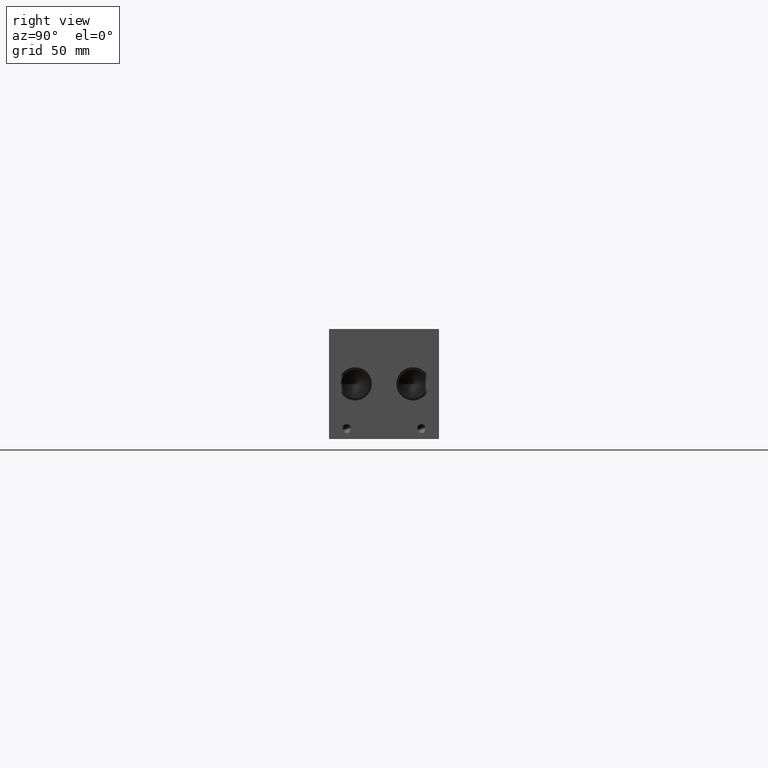
[diagram: clean part render]
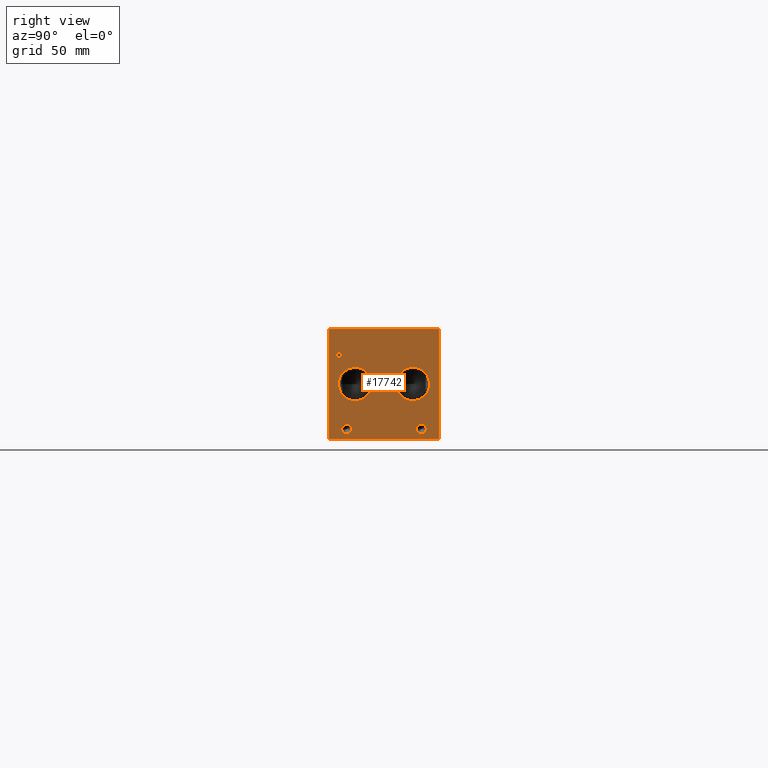
[diagram: same view with one face highlighted and labeled with its STEP entity id]
A machine part, right view. The second image highlights one B-rep face of the part: STEP entity #17742.
In plain terms, the highlighted planar face has unit normal (1, 0, 0).
Its self-contained STEP definition (entity closure, byte-faithful):
#477=CIRCLE('',#18527,13.462);
#478=CIRCLE('',#18528,13.462);
#479=CIRCLE('',#18529,13.462);
#480=CIRCLE('',#18530,13.462);
#481=CIRCLE('',#18531,3.9624);
#482=CIRCLE('',#18532,3.9624);
#483=CIRCLE('',#18533,3.9624);
#484=CIRCLE('',#18534,3.9624);
#1310=B_SPLINE_CURVE_WITH_KNOTS('',2,(#29284,#29285,#29286,#29287),
 .UNSPECIFIED.,.F.,.F.,(3,1,3),(0.,1.,2.),.UNSPECIFIED.);
#1312=B_SPLINE_CURVE_WITH_KNOTS('',2,(#29305,#29306,#29307,#29308),
 .UNSPECIFIED.,.F.,.F.,(3,1,3),(0.,1.,2.),.UNSPECIFIED.);
#1314=B_SPLINE_CURVE_WITH_KNOTS('',2,(#29354,#29355,#29356,#29357),
 .UNSPECIFIED.,.F.,.F.,(3,1,3),(0.,1.,2.),.UNSPECIFIED.);
#1316=B_SPLINE_CURVE_WITH_KNOTS('',2,(#29372,#29373,#29374,#29375),
 .UNSPECIFIED.,.F.,.F.,(3,1,3),(0.,1.,2.),.UNSPECIFIED.);
#1424=FACE_BOUND('',#3177,.T.);
#1425=FACE_BOUND('',#3178,.T.);
#1426=FACE_BOUND('',#3179,.T.);
#1427=FACE_BOUND('',#3180,.T.);
#1428=FACE_BOUND('',#3181,.T.);
#1429=FACE_BOUND('',#3182,.T.);
#2158=FACE_OUTER_BOUND('',#3176,.T.);
#3176=EDGE_LOOP('',(#14378,#14379,#14380,#14381));
#3177=EDGE_LOOP('',(#14382,#14383));
#3178=EDGE_LOOP('',(#14384,#14385));
#3179=EDGE_LOOP('',(#14386,#14387));
#3180=EDGE_LOOP('',(#14388,#14389));
#3181=EDGE_LOOP('',(#14390,#14391,#14392,#14393,#14394,#14395,#14396,#14397));
#3182=EDGE_LOOP('',(#14398,#14399,#14400,#14401,#14402,#14403,#14404,#14405,
#14406));
#3642=LINE('',#23291,#5225);
#4872=LINE('',#29317,#6455);
#4875=LINE('',#29323,#6458);
#4878=LINE('',#29329,#6461);
#4881=LINE('',#29335,#6464);
#4884=LINE('',#29341,#6467);
#4888=LINE('',#29383,#6471);
#4889=LINE('',#29385,#6472);
#4890=LINE('',#29386,#6473);
#4891=LINE('',#29405,#6474);
#4892=LINE('',#29407,#6475);
#4893=LINE('',#29409,#6476);
#4894=LINE('',#29411,#6477);
#4895=LINE('',#29413,#6478);
#4896=LINE('',#29415,#6479);
#4897=LINE('',#29417,#6480);
#4898=LINE('',#29418,#6481);
#5225=VECTOR('',#19321,10.);
#6455=VECTOR('',#21423,10.);
#6458=VECTOR('',#21428,10.);
#6461=VECTOR('',#21433,10.);
#6464=VECTOR('',#21438,10.);
#6467=VECTOR('',#21443,10.);
#6471=VECTOR('',#21451,10.);
#6472=VECTOR('',#21452,10.);
#6473=VECTOR('',#21453,10.);
#6474=VECTOR('',#21470,10.);
#6475=VECTOR('',#21471,10.);
#6476=VECTOR('',#21472,10.);
#6477=VECTOR('',#21473,10.);
#6478=VECTOR('',#21474,10.);
#6479=VECTOR('',#21475,10.);
#6480=VECTOR('',#21476,10.);
#6481=VECTOR('',#21477,10.);
#6797=VERTEX_POINT('',#23288);
#6798=VERTEX_POINT('',#23290);
#7928=VERTEX_POINT('',#29282);
#7929=VERTEX_POINT('',#29283);
#7932=VERTEX_POINT('',#29304);
#7934=VERTEX_POINT('',#29316);
#7936=VERTEX_POINT('',#29322);
#7938=VERTEX_POINT('',#29328);
#7940=VERTEX_POINT('',#29334);
#7942=VERTEX_POINT('',#29340);
#7944=VERTEX_POINT('',#29353);
#7946=VERTEX_POINT('',#29382);
#7947=VERTEX_POINT('',#29384);
#7948=VERTEX_POINT('',#29387);
#7949=VERTEX_POINT('',#29388);
#7950=VERTEX_POINT('',#29391);
#7951=VERTEX_POINT('',#29392);
#7952=VERTEX_POINT('',#29395);
#7953=VERTEX_POINT('',#29396);
#7954=VERTEX_POINT('',#29399);
#7955=VERTEX_POINT('',#29400);
#7956=VERTEX_POINT('',#29403);
#7957=VERTEX_POINT('',#29404);
#7958=VERTEX_POINT('',#29406);
#7959=VERTEX_POINT('',#29408);
#7960=VERTEX_POINT('',#29410);
#7961=VERTEX_POINT('',#29412);
#7962=VERTEX_POINT('',#29414);
#7963=VERTEX_POINT('',#29416);
#8560=EDGE_CURVE('',#6797,#6798,#3642,.T.);
#10227=EDGE_CURVE('',#7928,#7929,#1310,.T.);
#10231=EDGE_CURVE('',#7932,#7928,#1312,.T.);
#10234=EDGE_CURVE('',#7934,#7932,#4872,.T.);
#10237=EDGE_CURVE('',#7936,#7934,#4875,.T.);
#10240=EDGE_CURVE('',#7938,#7936,#4878,.T.);
#10243=EDGE_CURVE('',#7940,#7938,#4881,.T.);
#10246=EDGE_CURVE('',#7942,#7940,#4884,.T.);
#10249=EDGE_CURVE('',#7944,#7942,#1314,.T.);
#10252=EDGE_CURVE('',#7929,#7944,#1316,.T.);
#10254=EDGE_CURVE('',#6797,#7946,#4888,.T.);
#10255=EDGE_CURVE('',#7946,#7947,#4889,.T.);
#10256=EDGE_CURVE('',#6798,#7947,#4890,.T.);
#10257=EDGE_CURVE('',#7948,#7949,#477,.T.);
#10258=EDGE_CURVE('',#7949,#7948,#478,.T.);
#10259=EDGE_CURVE('',#7950,#7951,#479,.T.);
#10260=EDGE_CURVE('',#7951,#7950,#480,.T.);
#10261=EDGE_CURVE('',#7952,#7953,#481,.T.);
#10262=EDGE_CURVE('',#7953,#7952,#482,.T.);
#10263=EDGE_CURVE('',#7954,#7955,#483,.T.);
#10264=EDGE_CURVE('',#7955,#7954,#484,.T.);
#10265=EDGE_CURVE('',#7956,#7957,#4891,.T.);
#10266=EDGE_CURVE('',#7957,#7958,#4892,.T.);
#10267=EDGE_CURVE('',#7958,#7959,#4893,.T.);
#10268=EDGE_CURVE('',#7959,#7960,#4894,.T.);
#10269=EDGE_CURVE('',#7960,#7961,#4895,.T.);
#10270=EDGE_CURVE('',#7961,#7962,#4896,.T.);
#10271=EDGE_CURVE('',#7962,#7963,#4897,.T.);
#10272=EDGE_CURVE('',#7963,#7956,#4898,.T.);
#14378=ORIENTED_EDGE('',*,*,#10254,.T.);
#14379=ORIENTED_EDGE('',*,*,#10255,.T.);
#14380=ORIENTED_EDGE('',*,*,#10256,.F.);
#14381=ORIENTED_EDGE('',*,*,#8560,.F.);
#14382=ORIENTED_EDGE('',*,*,#10257,.T.);
#14383=ORIENTED_EDGE('',*,*,#10258,.T.);
#14384=ORIENTED_EDGE('',*,*,#10259,.T.);
#14385=ORIENTED_EDGE('',*,*,#10260,.T.);
#14386=ORIENTED_EDGE('',*,*,#10261,.T.);
#14387=ORIENTED_EDGE('',*,*,#10262,.T.);
#14388=ORIENTED_EDGE('',*,*,#10263,.T.);
#14389=ORIENTED_EDGE('',*,*,#10264,.T.);
#14390=ORIENTED_EDGE('',*,*,#10265,.T.);
#14391=ORIENTED_EDGE('',*,*,#10266,.T.);
#14392=ORIENTED_EDGE('',*,*,#10267,.T.);
#14393=ORIENTED_EDGE('',*,*,#10268,.T.);
#14394=ORIENTED_EDGE('',*,*,#10269,.T.);
#14395=ORIENTED_EDGE('',*,*,#10270,.T.);
#14396=ORIENTED_EDGE('',*,*,#10271,.T.);
#14397=ORIENTED_EDGE('',*,*,#10272,.T.);
#14398=ORIENTED_EDGE('',*,*,#10227,.T.);
#14399=ORIENTED_EDGE('',*,*,#10252,.T.);
#14400=ORIENTED_EDGE('',*,*,#10249,.T.);
#14401=ORIENTED_EDGE('',*,*,#10246,.T.);
#14402=ORIENTED_EDGE('',*,*,#10243,.T.);
#14403=ORIENTED_EDGE('',*,*,#10240,.T.);
#14404=ORIENTED_EDGE('',*,*,#10237,.T.);
#14405=ORIENTED_EDGE('',*,*,#10234,.T.);
#14406=ORIENTED_EDGE('',*,*,#10231,.T.);
#16394=PLANE('',#18526);
#17742=ADVANCED_FACE('',(#2158,#1424,#1425,#1426,#1427,#1428,#1429),#16394,
 .T.);
#18526=AXIS2_PLACEMENT_3D('',#29381,#21449,#21450);
#18527=AXIS2_PLACEMENT_3D('',#29389,#21454,#21455);
#18528=AXIS2_PLACEMENT_3D('',#29390,#21456,#21457);
#18529=AXIS2_PLACEMENT_3D('',#29393,#21458,#21459);
#18530=AXIS2_PLACEMENT_3D('',#29394,#21460,#21461);
#18531=AXIS2_PLACEMENT_3D('',#29397,#21462,#21463);
#18532=AXIS2_PLACEMENT_3D('',#29398,#21464,#21465);
#18533=AXIS2_PLACEMENT_3D('',#29401,#21466,#21467);
#18534=AXIS2_PLACEMENT_3D('',#29402,#21468,#21469);
#19321=DIRECTION('',(0.,0.,1.));
#21423=DIRECTION('',(0.,1.,0.));
#21428=DIRECTION('',(0.,0.,1.));
#21433=DIRECTION('',(0.,-1.,0.));
#21438=DIRECTION('',(0.,0.,-1.));
#21443=DIRECTION('',(0.,-1.,0.));
#21449=DIRECTION('center_axis',(1.,0.,0.));
#21450=DIRECTION('ref_axis',(0.,1.,0.));
#21451=DIRECTION('',(0.,1.,0.));
#21452=DIRECTION('',(0.,0.,1.));
#21453=DIRECTION('',(0.,1.,0.));
#21454=DIRECTION('center_axis',(-1.,0.,0.));
#21455=DIRECTION('ref_axis',(0.,1.,0.));
#21456=DIRECTION('center_axis',(-1.,0.,0.));
#21457=DIRECTION('ref_axis',(0.,1.,0.));
#21458=DIRECTION('center_axis',(-1.,0.,0.));
#21459=DIRECTION('ref_axis',(0.,1.,0.));
#21460=DIRECTION('center_axis',(-1.,0.,0.));
#21461=DIRECTION('ref_axis',(0.,1.,0.));
#21462=DIRECTION('center_axis',(-1.,0.,0.));
#21463=DIRECTION('ref_axis',(0.,1.,0.));
#21464=DIRECTION('center_axis',(-1.,0.,0.));
#21465=DIRECTION('ref_axis',(0.,1.,0.));
#21466=DIRECTION('center_axis',(-1.,0.,0.));
#21467=DIRECTION('ref_axis',(0.,1.,0.));
#21468=DIRECTION('center_axis',(-1.,0.,0.));
#21469=DIRECTION('ref_axis',(0.,1.,0.));
#21470=DIRECTION('',(0.,-1.,0.));
#21471=DIRECTION('',(0.,0.,1.));
#21472=DIRECTION('',(0.,-1.,0.));
#21473=DIRECTION('',(0.,0.,1.));
#21474=DIRECTION('',(0.,1.,0.));
#21475=DIRECTION('',(0.,0.,-1.));
#21476=DIRECTION('',(0.,-1.,0.));
#21477=DIRECTION('',(0.,0.,-1.));
#23288=CARTESIAN_POINT('',(577.85,0.,0.));
#23290=CARTESIAN_POINT('',(577.85,0.,88.9));
#23291=CARTESIAN_POINT('',(577.85,0.,0.));
#29282=CARTESIAN_POINT('',(577.85,9.45681720235939,69.4537681439707));
#29283=CARTESIAN_POINT('',(577.85,10.213259654532,67.935737372604));
#29284=CARTESIAN_POINT('Ctrl Pts',(577.85,9.45681720235939,69.4537681439707));
#29285=CARTESIAN_POINT('Ctrl Pts',(577.85,9.81188202684857,69.2119123939564));
#29286=CARTESIAN_POINT('Ctrl Pts',(577.85,10.213259654532,68.4657616758269));
#29287=CARTESIAN_POINT('Ctrl Pts',(577.85,10.213259654532,67.935737372604));
#29304=CARTESIAN_POINT('',(577.85,7.7947021543883,69.8499999046326));
#29305=CARTESIAN_POINT('Ctrl Pts',(577.85,7.7947021543883,69.8499999046326));
#29306=CARTESIAN_POINT('Ctrl Pts',(577.85,8.36074752676236,69.8499999046326));
#29307=CARTESIAN_POINT('Ctrl Pts',(577.85,9.15321104808603,69.6647486918556));
#29308=CARTESIAN_POINT('Ctrl Pts',(577.85,9.45681720235939,69.4537681439707));
#29316=CARTESIAN_POINT('',(577.85,6.19948337769779,69.8499999046326));
#29317=CARTESIAN_POINT('',(577.85,3.09974168884889,69.8499999046326));
#29322=CARTESIAN_POINT('',(577.85,6.19948337769779,63.5));
#29323=CARTESIAN_POINT('',(577.85,6.19948337769779,31.75));
#29328=CARTESIAN_POINT('',(577.85,7.04340556923729,63.5));
#29329=CARTESIAN_POINT('',(577.85,3.52170278461864,63.5));
#29334=CARTESIAN_POINT('',(577.85,7.04340556923729,65.8670988299279));
#29335=CARTESIAN_POINT('',(577.85,7.04340556923729,32.9335494149639));
#29340=CARTESIAN_POINT('',(577.85,7.75868108523723,65.8670988299279));
#29341=CARTESIAN_POINT('',(577.85,3.87934054261861,65.8670988299279));
#29353=CARTESIAN_POINT('',(577.85,9.6575060162011,66.5257698086904));
#29354=CARTESIAN_POINT('Ctrl Pts',(577.85,9.6575060162011,66.5257698086904));
#29355=CARTESIAN_POINT('Ctrl Pts',(577.85,9.32817052681983,66.2015801863307));
#29356=CARTESIAN_POINT('Ctrl Pts',(577.85,8.43793553208609,65.8670988299279));
#29357=CARTESIAN_POINT('Ctrl Pts',(577.85,7.75868108523723,65.8670988299279));
#29372=CARTESIAN_POINT('Ctrl Pts',(577.85,10.213259654532,67.935737372604));
#29373=CARTESIAN_POINT('Ctrl Pts',(577.85,10.213259654532,67.5240680108774));
#29374=CARTESIAN_POINT('Ctrl Pts',(577.85,9.9199452343018,66.7830631597695));
#29375=CARTESIAN_POINT('Ctrl Pts',(577.85,9.6575060162011,66.5257698086904));
#29381=CARTESIAN_POINT('Origin',(577.85,0.,0.));
#29382=CARTESIAN_POINT('',(577.85,88.9,0.));
#29383=CARTESIAN_POINT('',(577.85,0.,0.));
#29384=CARTESIAN_POINT('',(577.85,88.9,88.9));
#29385=CARTESIAN_POINT('',(577.85,88.9,0.));
#29386=CARTESIAN_POINT('',(577.85,0.,88.9));
#29387=CARTESIAN_POINT('',(577.85,34.544,44.45));
#29388=CARTESIAN_POINT('',(577.85,7.62,44.45));
#29389=CARTESIAN_POINT('Origin',(577.85,21.082,44.45));
#29390=CARTESIAN_POINT('Origin',(577.85,21.082,44.45));
#29391=CARTESIAN_POINT('',(577.85,81.28,44.45));
#29392=CARTESIAN_POINT('',(577.85,54.356,44.45));
#29393=CARTESIAN_POINT('Origin',(577.85,67.818,44.45));
#29394=CARTESIAN_POINT('Origin',(577.85,67.818,44.45));
#29395=CARTESIAN_POINT('',(577.85,78.5876,7.9248));
#29396=CARTESIAN_POINT('',(577.85,70.6628,7.9248));
#29397=CARTESIAN_POINT('Origin',(577.85,74.6252,7.9248));
#29398=CARTESIAN_POINT('Origin',(577.85,74.6252,7.9248));
#29399=CARTESIAN_POINT('',(577.85,18.2372,7.9248));
#29400=CARTESIAN_POINT('',(577.85,10.3124,7.9248));
#29401=CARTESIAN_POINT('Origin',(577.85,14.2748,7.9248));
#29402=CARTESIAN_POINT('Origin',(577.85,14.2748,7.9248));
#29403=CARTESIAN_POINT('',(577.85,80.756665271453,63.5));
#29404=CARTESIAN_POINT('',(577.85,79.9127430799135,63.5));
#29405=CARTESIAN_POINT('',(577.85,40.3783326357265,63.5));
#29406=CARTESIAN_POINT('',(577.85,79.9127430799135,69.0987033194816));
#29407=CARTESIAN_POINT('',(577.85,79.9127430799135,31.75));
#29408=CARTESIAN_POINT('',(577.85,77.7823541329784,69.0987033194816));
#29409=CARTESIAN_POINT('',(577.85,39.9563715399567,69.0987033194816));
#29410=CARTESIAN_POINT('',(577.85,77.7823541329784,69.8499999046326));
#29411=CARTESIAN_POINT('',(577.85,77.7823541329784,34.5493516597408));
#29412=CARTESIAN_POINT('',(577.85,82.8870542183881,69.8499999046326));
#29413=CARTESIAN_POINT('',(577.85,38.8911770664892,69.8499999046326));
#29414=CARTESIAN_POINT('',(577.85,82.8870542183881,69.0987033194816));
#29415=CARTESIAN_POINT('',(577.85,82.8870542183881,34.9249999523163));
#29416=CARTESIAN_POINT('',(577.85,80.756665271453,69.0987033194816));
#29417=CARTESIAN_POINT('',(577.85,41.443527109194,69.0987033194816));
#29418=CARTESIAN_POINT('',(577.85,80.756665271453,34.5493516597408));